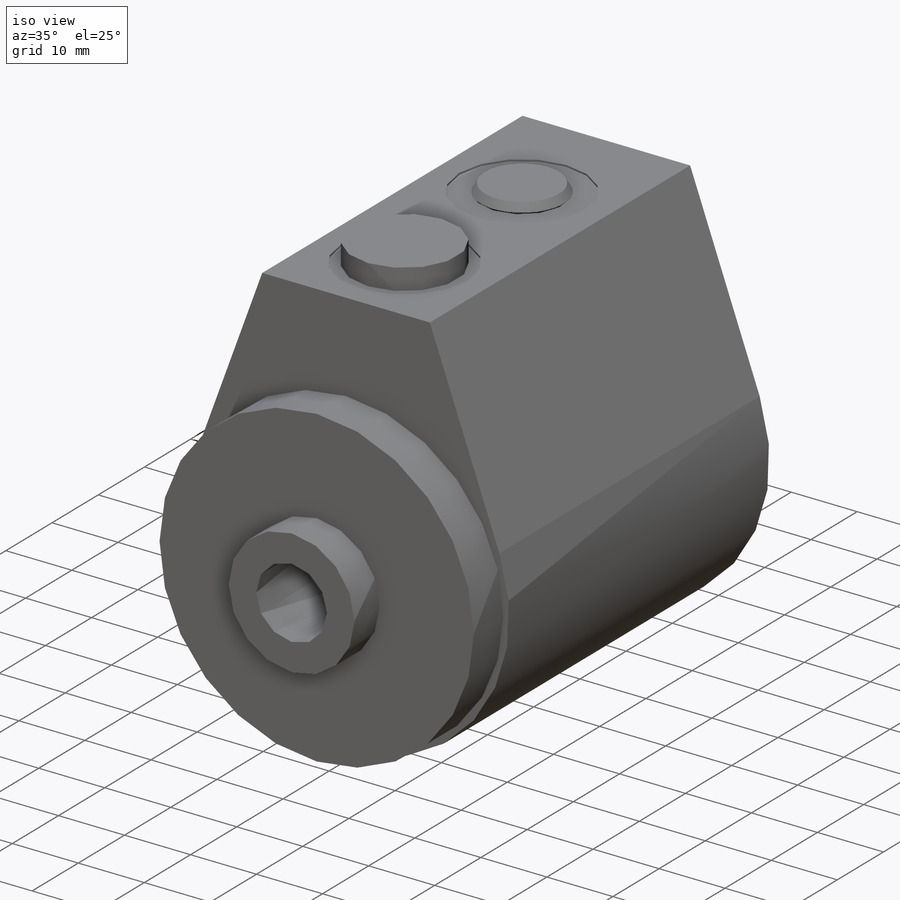
[diagram: iso view]
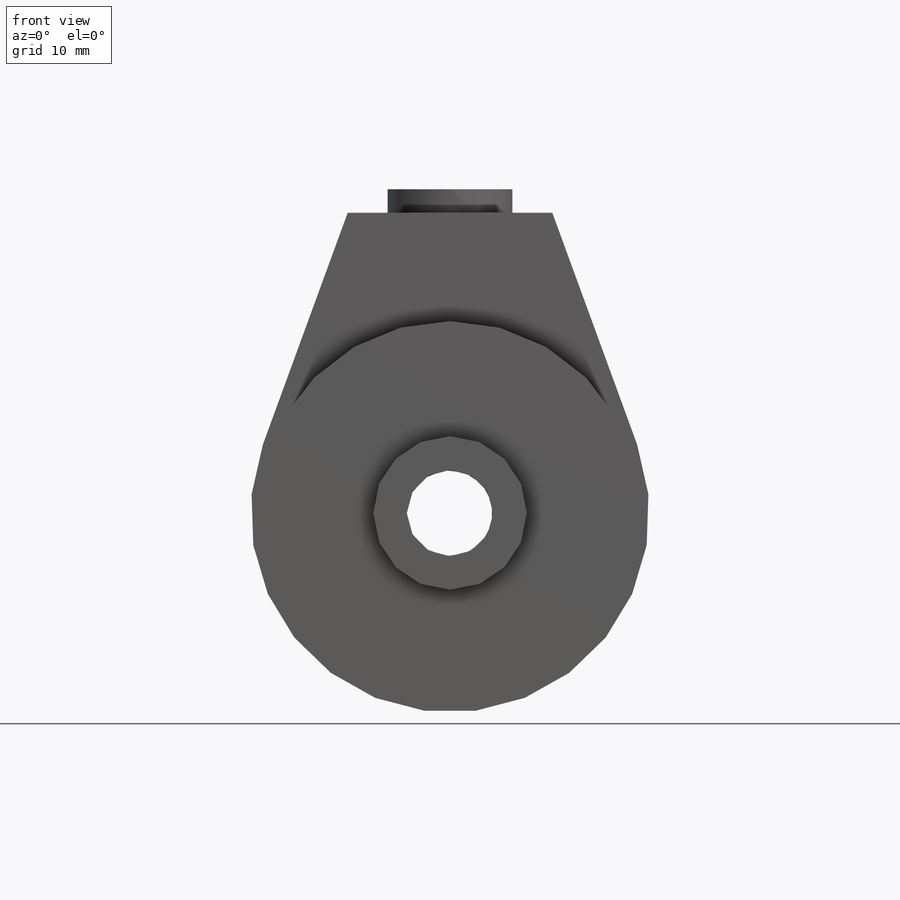
[diagram: front view]
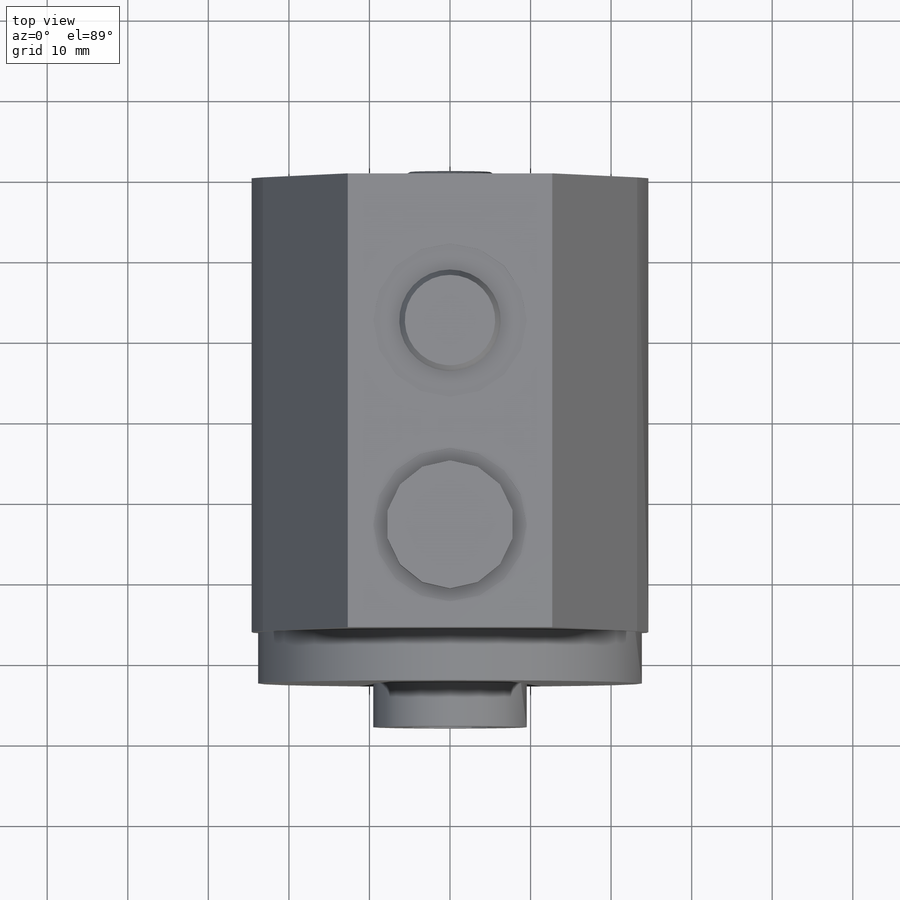
[diagram: top view]
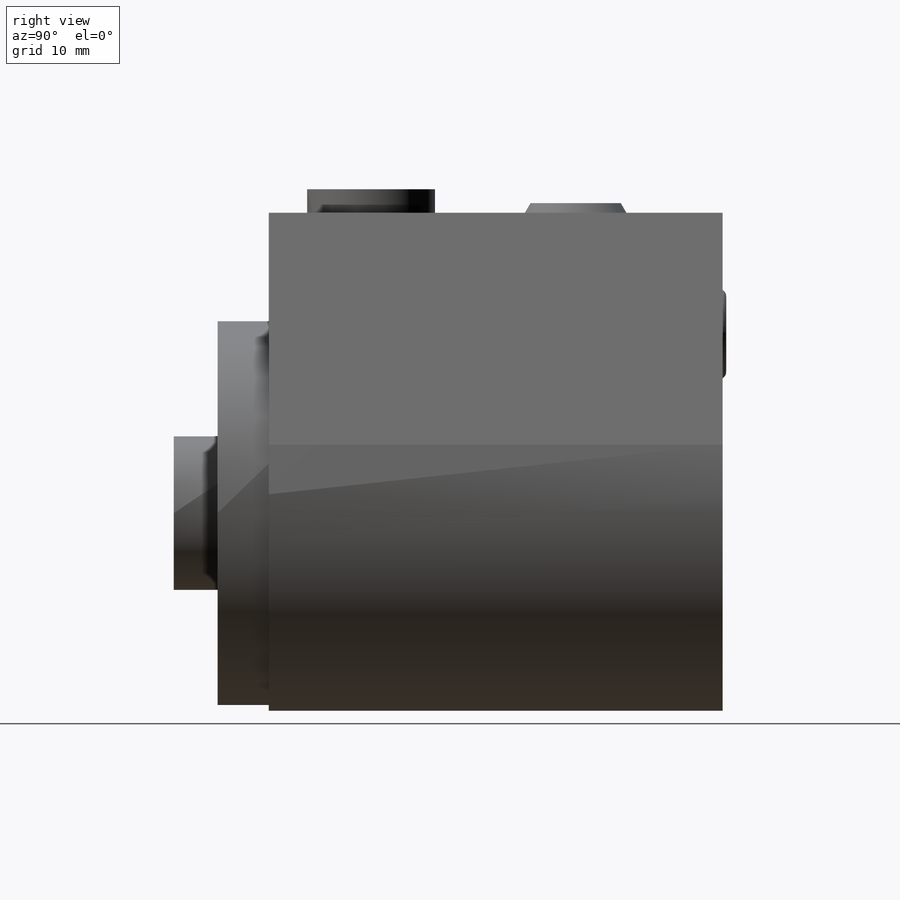
[diagram: right view]
SOLIDWORKS PART (.sldprt)
format: sldprt  version: not decoded by parser v0  size: 382,464 bytes
history: native  units: mm
features: sketch x18, revolve x5, plane x4, hole x4, cut_revolve x2, cut_extrude x2, material x1, extrude x1, pattern_circular x1 (+11 scaffold rows collapsed)
feature tree (49):
  scaffold x11  (default folders/planes/origin — collapsed)
  material  "Alloy Steel"
  plane  "Plane1"  Offset=56.3372mm
  sketch  "Sketch1"  dims[D1=49.4792mm D2=37.2872mm D3=12.7mm]
  extrude  "Extrude1"  Depth=56.3372mm
  hole  "Hole1"  Diameter=19.05mm Depth=0.254mm
  sketch  "Sketch3"  dims[D1=12.7mm]
  sketch  "Sketch2"  dims[Diameter=19.05mm Depth=0.254mm]
  hole  "Hole2"  Diameter=23.876mm Depth=6.35mm
  sketch  "Sketch5"
  sketch  "Sketch4"  dims[Diameter=23.876mm Depth=6.35mm]
  plane  "Plane2"
  sketch  "Sketch7"  dims[D1=19.05mm D2=47.625mm D3=6.35mm D4=68.1228mm]
  revolve  "Revolve2"  Angle=360deg
  sketch  "Sketch6"  dims[D1=62.7126mm D2=19.05mm]
  revolve  "Revolve1"  Angle=360deg
  sketch  "Sketch8"  dims[D1=3.175mm D2=15.875mm D3=~15.858469mm]
  revolve  "Revolve3"  Angle=360deg
  plane  "Plane4"  Offset=38.1mm
  sketch  "Sketch9"  dims[c1.D1=0.254mm c1.D2=20.828mm c1.D3=9.9568mm c1.D4=19.05mm c1.D5=~2.609729mm c2.D5=12.0deg c2.D6=12.3698mm c2.D7=~0.938906mm c3.D7=45.0deg c3.D8=2.5527mm]
  cut_revolve  "Cut-Revolve1"  Angle=360deg
  plane  "Plane5"  Offset=12.7mm
  sketch  "Sketch10"  dims[c1.D1=9.9568mm c1.D2=13.462mm c1.D3=~0.938906mm c2.D3=45.0deg c2.D4=2.5527mm c3.D4=12.0deg c3.D5=12.3698mm c3.D6=2.5527mm]
  cut_revolve  "Cut-Revolve2"  Angle=360deg
  hole  "Hole3"  Diameter=6.6294mm Depth=12.7mm
  sketch  "Sketch12"  dims[D1=18.2626mm]
  sketch  "Sketch11"  dims[Diameter=6.6294mm Depth=12.7mm]
  pattern_circular  "CirPattern1"  Count=2 Angle=360deg
  hole  "Hole5"  Diameter=10.7188mm Depth=62.7126mm
  sketch  "Sketch16"
  sketch  "Sketch15"  dims[Diameter=10.7188mm Depth=62.7126mm C-Drill Diameter=13.4874mm C-Drill Depth=47.752mm C-Drill Angle=118.0deg]
  sketch  "Sketch17"  dims[D1=11.2014mm D2=22.225mm]
  cut_extrude  "Cut-Extrude1"  Depth=1.3208mm
  sketch  "Sketch18"  dims[D1=5.0546mm]
  cut_extrude  "Cut-Extrude2"  Depth=12.7mm
  sketch  "Sketch19"  dims[D2=1.778mm D1=1.3208mm D3=4.7117mm]
  revolve  "Revolve4"  Angle=360deg
  sketch  "Sketch20"  dims[c1.D1=18.2372mm c1.D2=6.2992mm c1.D3=1.1938mm c1.D4=~2.182336mm c2.D4=60.0deg]
  revolve  "Revolve5"  Angle=360deg
decode coverage: 31 of 33 modeling features carry decoded parameters
note: ~ marks probable driven/reference dimensions
summary: Diameter pulled from absorbed wizard sketch
note: suppression state not decoded; provenance and decode notes live in map.json
